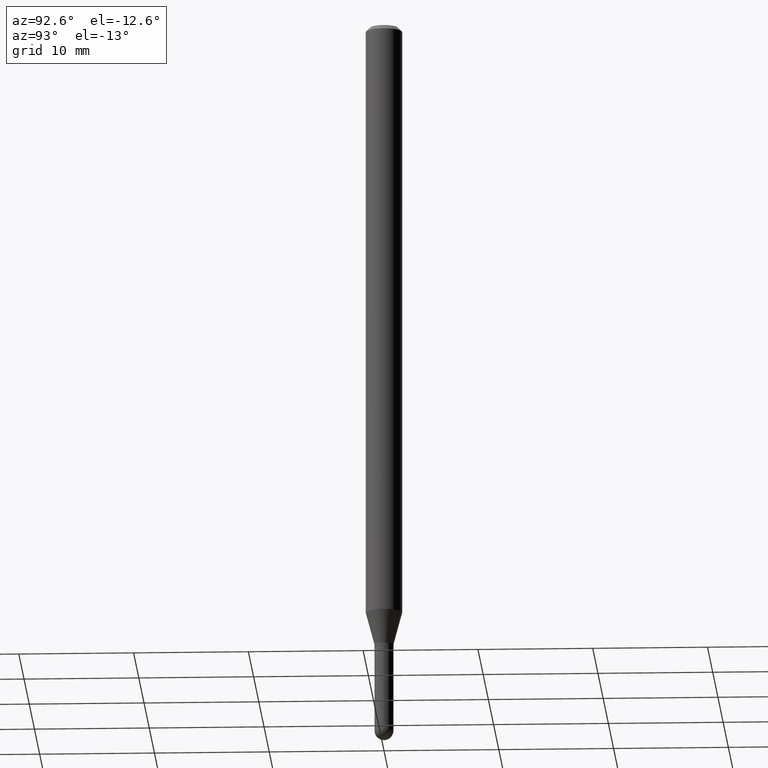
[diagram: clean part render]
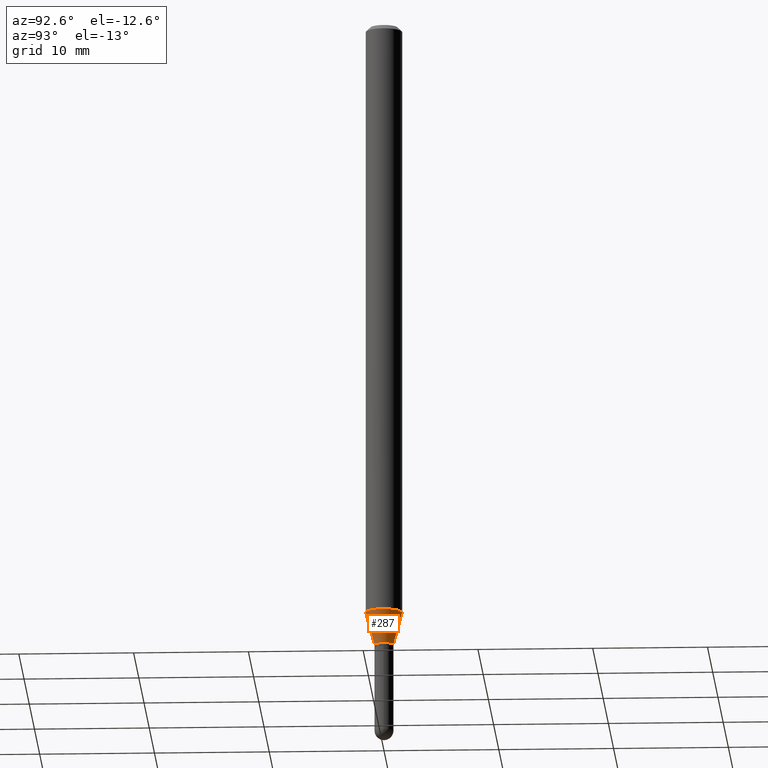
[diagram: same view with one face highlighted and labeled with its STEP entity id]
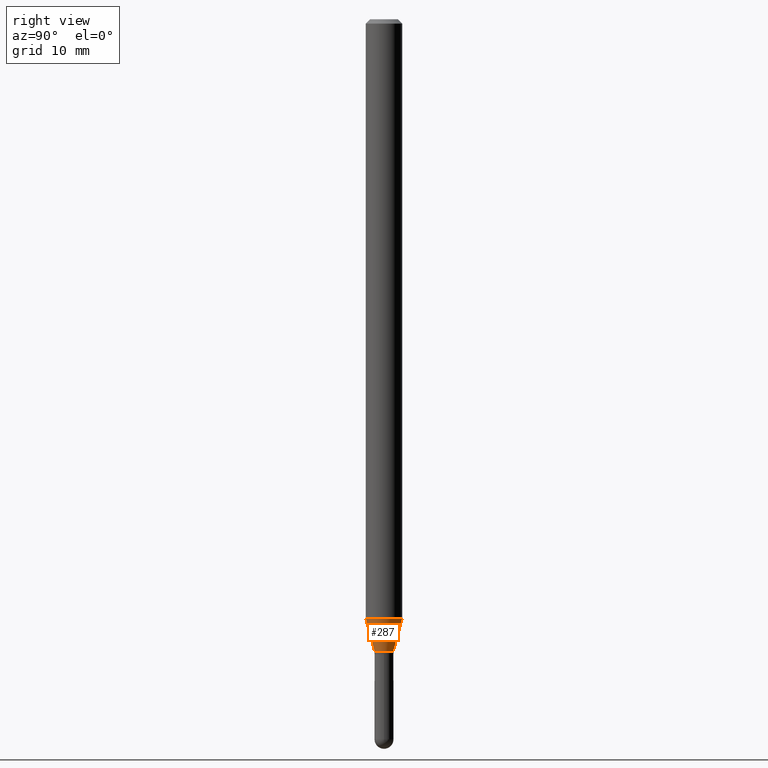
[diagram: same view with one face highlighted and labeled with its STEP entity id]
A machine part, auxiliary view. The second image highlights one B-rep face of the part: STEP entity #287.
A second angle (right view) of the same face is appended — the face is thin or edge-on in the first view.
In plain terms, the highlighted conical surface has half-angle 15 deg.
Its self-contained STEP definition (entity closure, byte-faithful):
#2 = CONICAL_SURFACE ( 'NONE', #262, 0.03250000000000020234, 0.2617993877991502960 ) ;
#11 = EDGE_CURVE ( 'NONE', #389, #494, #391, .T. ) ;
#44 = DIRECTION ( 'NONE',  ( -2.445506507282812490E-29, 3.491427348725460411E-15, 1.000000000000000000 ) ) ;
#66 = VERTEX_POINT ( 'NONE', #277 ) ;
#73 = DIRECTION ( 'NONE',  ( -2.445506507282812490E-29, 3.491427348725460411E-15, 1.000000000000000000 ) ) ;
#96 = LINE ( 'NONE', #418, #454 ) ;
#98 = VECTOR ( 'NONE', #384, 39.37007874015748143 ) ;
#102 = CARTESIAN_POINT ( 'NONE',  ( 2.309263891220869011E-16, 0.03249999999999263894, -2.165000000000000036 ) ) ;
#108 = FACE_OUTER_BOUND ( 'NONE', #427, .T. ) ;
#141 = DIRECTION ( 'NONE',  ( -6.982962677686265133E-15, -1.000000000000000000, 0.000000000000000000 ) ) ;
#176 = ORIENTED_EDGE ( 'NONE', *, *, #405, .T. ) ;
#201 = CARTESIAN_POINT ( 'NONE',  ( 4.440892098501125116E-16, 0.06249999999999279743, -2.053038475772935190 ) ) ;
#204 = CIRCLE ( 'NONE', #496, 0.03250000000000020234 ) ;
#223 = CARTESIAN_POINT ( 'NONE',  ( -4.364351673553415767E-16, -0.06250000000000720257, -2.053038475772934746 ) ) ;
#226 = ORIENTED_EDGE ( 'NONE', *, *, #413, .T. ) ;
#228 = CARTESIAN_POINT ( 'NONE',  ( 5.294521588267289045E-29, -7.558940209990621706E-15, -2.165000000000000036 ) ) ;
#262 = AXIS2_PLACEMENT_3D ( 'NONE', #228, #465, #141 ) ;
#263 = DIRECTION ( 'NONE',  ( -1.807323732225330139E-15, -0.2588190451025181860, 0.9659258262890689783 ) ) ;
#266 = CARTESIAN_POINT ( 'NONE',  ( 5.294521588267289045E-29, -7.558940209990621706E-15, -2.165000000000000036 ) ) ;
#275 = CARTESIAN_POINT ( 'NONE',  ( 3.375077994860999036E-16, 0.03249999999999263894, -2.165000000000000036 ) ) ;
#276 = DIRECTION ( 'NONE',  ( -6.982962677686265922E-15, -1.000000000000000000, 4.370956789862821150E-15 ) ) ;
#277 = CARTESIAN_POINT ( 'NONE',  ( -2.269462870247520766E-16, -0.03250000000000775879, -2.165000000000000036 ) ) ;
#287 = ADVANCED_FACE ( 'NONE', ( #108 ), #2, .T. ) ;
#307 = DIRECTION ( 'NONE',  ( -6.982962677686265133E-15, -1.000000000000000000, 0.000000000000000000 ) ) ;
#334 = LINE ( 'NONE', #102, #98 ) ;
#335 = ORIENTED_EDGE ( 'NONE', *, *, #373, .F. ) ;
#344 = AXIS2_PLACEMENT_3D ( 'NONE', #443, #44, #276 ) ;
#345 = ORIENTED_EDGE ( 'NONE', *, *, #11, .F. ) ;
#373 = EDGE_CURVE ( 'NONE', #66, #389, #96, .T. ) ;
#384 = DIRECTION ( 'NONE',  ( 1.839019923739600315E-15, 0.2588190451025249583, 0.9659258262890670910 ) ) ;
#389 = VERTEX_POINT ( 'NONE', #223 ) ;
#391 = CIRCLE ( 'NONE', #344, 0.06250000000000000000 ) ;
#405 = EDGE_CURVE ( 'NONE', #509, #494, #334, .T. ) ;
#413 = EDGE_CURVE ( 'NONE', #66, #509, #204, .T. ) ;
#418 = CARTESIAN_POINT ( 'NONE',  ( -2.269462870247520766E-16, -0.03250000000000775879, -2.165000000000000036 ) ) ;
#427 = EDGE_LOOP ( 'NONE', ( #226, #176, #345, #335 ) ) ;
#443 = CARTESIAN_POINT ( 'NONE',  ( 5.020718952204699341E-29, -7.168034682299257962E-15, -2.053038475772934746 ) ) ;
#454 = VECTOR ( 'NONE', #263, 39.37007874015748143 ) ;
#465 = DIRECTION ( 'NONE',  ( -2.445506507282812490E-29, 3.491427348725460411E-15, 1.000000000000000000 ) ) ;
#494 = VERTEX_POINT ( 'NONE', #201 ) ;
#496 = AXIS2_PLACEMENT_3D ( 'NONE', #266, #73, #307 ) ;
#509 = VERTEX_POINT ( 'NONE', #275 ) ;